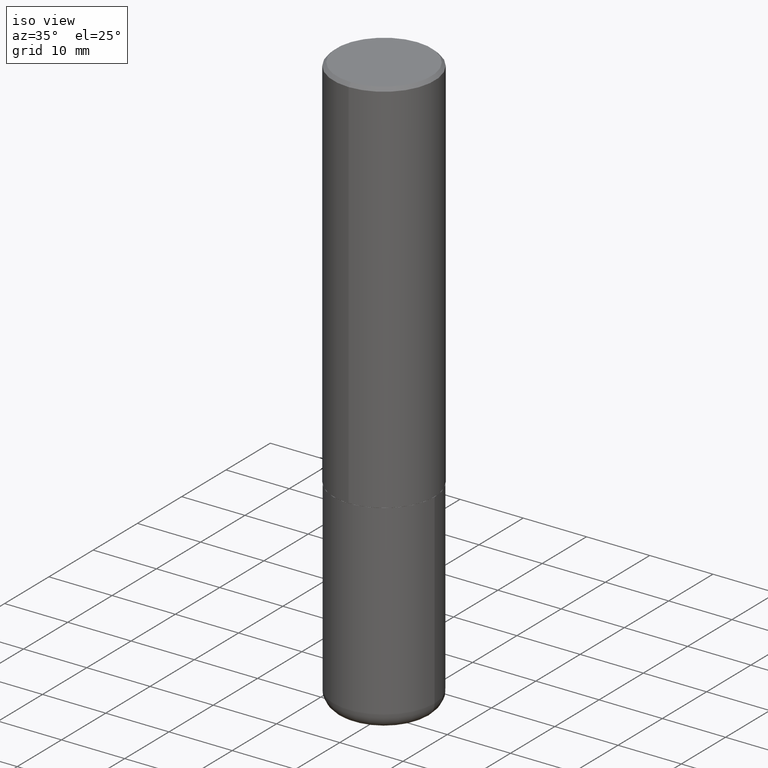
[diagram: clean part render]
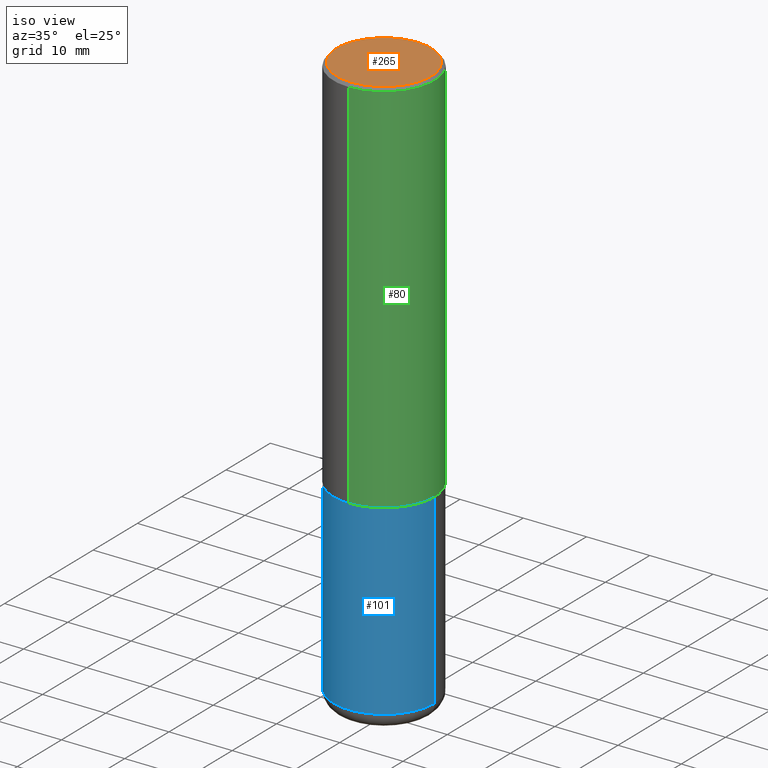
[diagram: same view with three faces highlighted in distinct colors, each labeled with its STEP entity id]
A machine part, iso view with three faces highlighted in distinct colors.
Their STEP definitions:

[orange] entity #265 — the highlighted planar face has unit normal (0, -0, -1).
#10 = DIRECTION ( 'NONE',  ( 2.445305379362280521E-29, -3.491715375355152192E-15, -1.000000000000000000 ) ) ;
#32 = CIRCLE ( 'NONE', #374, 0.2949499999999998234 ) ;
#73 = DIRECTION ( 'NONE',  ( -6.982962677686265922E-15, -1.000000000000000000, 3.491715375355151403E-15 ) ) ;
#103 = ORIENTED_EDGE ( 'NONE', *, *, #262, .T. ) ;
#105 = EDGE_LOOP ( 'NONE', ( #103, #149 ) ) ;
#108 = CARTESIAN_POINT ( 'NONE',  ( -2.092108864420427637E-15, -0.2949499999999998234, 1.196422466144134051E-15 ) ) ;
#110 = CARTESIAN_POINT ( 'NONE',  ( 2.059624841783562880E-15, 0.2949499999999998234, -9.466109418694351198E-16 ) ) ;
#111 = EDGE_CURVE ( 'NONE', #156, #344, #32, .T. ) ;
#144 = DIRECTION ( 'NONE',  ( 6.982962677686265922E-15, 1.000000000000000000, -3.491715375355152192E-15 ) ) ;
#147 = CARTESIAN_POINT ( 'NONE',  ( -4.072436427570742464E-45, 5.815138268339145389E-31, 1.665410161831323580E-16 ) ) ;
#149 = ORIENTED_EDGE ( 'NONE', *, *, #111, .T. ) ;
#156 = VERTEX_POINT ( 'NONE', #108 ) ;
#175 = CIRCLE ( 'NONE', #383, 0.2949499999999998234 ) ;
#178 = CARTESIAN_POINT ( 'NONE',  ( 2.129454468560426573E-15, 0.2949499999999998234, -8.633404337778690394E-16 ) ) ;
#230 = DIRECTION ( 'NONE',  ( -6.982962677686265922E-15, -1.000000000000000000, 3.491715375355151403E-15 ) ) ;
#234 = PLANE ( 'NONE',  #411 ) ;
#262 = EDGE_CURVE ( 'NONE', #344, #156, #175, .T. ) ;
#263 = DIRECTION ( 'NONE',  ( -2.445305379362280801E-29, 3.491715375355152192E-15, 1.000000000000000000 ) ) ;
#265 = ADVANCED_FACE ( 'NONE', ( #307 ), #234, .F. ) ;
#307 = FACE_OUTER_BOUND ( 'NONE', #105, .T. ) ;
#344 = VERTEX_POINT ( 'NONE', #178 ) ;
#362 = DIRECTION ( 'NONE',  ( -2.445305379362280801E-29, 3.491715375355152192E-15, 1.000000000000000000 ) ) ;
#374 = AXIS2_PLACEMENT_3D ( 'NONE', #389, #263, #230 ) ;
#383 = AXIS2_PLACEMENT_3D ( 'NONE', #147, #362, #73 ) ;
#389 = CARTESIAN_POINT ( 'NONE',  ( -4.072436427570742464E-45, 5.815138268339145389E-31, 1.665410161831323580E-16 ) ) ;
#411 = AXIS2_PLACEMENT_3D ( 'NONE', #110, #10, #144 ) ;

[blue] entity #101 — the highlighted cylindrical surface (partial cylindrical patch) has radius 7.9997 mm, axis along (-0, 0, 1).
#7 = EDGE_CURVE ( 'NONE', #243, #277, #342, .T. ) ;
#11 = DIRECTION ( 'NONE',  ( -2.445468806185136877E-29, 3.491481338843145188E-15, 1.000000000000000000 ) ) ;
#42 = DIRECTION ( 'NONE',  ( 1.000000000000000000, -6.982962677686266711E-15, 0.000000000000000000 ) ) ;
#58 = AXIS2_PLACEMENT_3D ( 'NONE', #138, #136, #391 ) ;
#62 = CARTESIAN_POINT ( 'NONE',  ( -0.3149500000000000077, 2.237854346276435590E-15, -1.549218606675782676E-29 ) ) ;
#71 = LINE ( 'NONE', #395, #200 ) ;
#79 = ORIENTED_EDGE ( 'NONE', *, *, #190, .F. ) ;
#100 = CARTESIAN_POINT ( 'NONE',  ( 8.616853885473946211E-29, -1.230258364554770589E-14, -3.523599999999999621 ) ) ;
#101 = ADVANCED_FACE ( 'NONE', ( #258 ), #353, .T. ) ;
#107 = CARTESIAN_POINT ( 'NONE',  ( 0.3149500000000000077, -1.044686131395256792E-14, -2.362199999999999633 ) ) ;
#125 = EDGE_LOOP ( 'NONE', ( #79, #287, #312, #142 ) ) ;
#136 = DIRECTION ( 'NONE',  ( -2.445468806185136597E-29, 3.491481338843145583E-15, 1.000000000000000000 ) ) ;
#138 = CARTESIAN_POINT ( 'NONE',  ( 0.000000000000000000, 0.000000000000000000, 0.000000000000000000 ) ) ;
#142 = ORIENTED_EDGE ( 'NONE', *, *, #250, .F. ) ;
#145 = LINE ( 'NONE', #62, #195 ) ;
#177 = CARTESIAN_POINT ( 'NONE',  ( 5.776686413970529753E-29, -8.247577218615278049E-15, -2.362199999999999633 ) ) ;
#190 = EDGE_CURVE ( 'NONE', #243, #371, #145, .T. ) ;
#194 = AXIS2_PLACEMENT_3D ( 'NONE', #100, #254, #225 ) ;
#195 = VECTOR ( 'NONE', #11, 39.37007874015748143 ) ;
#200 = VECTOR ( 'NONE', #367, 39.37007874015748143 ) ;
#216 = VERTEX_POINT ( 'NONE', #107 ) ;
#225 = DIRECTION ( 'NONE',  ( 1.000000000000000000, -6.982962677686269866E-15, 0.000000000000000000 ) ) ;
#239 = CARTESIAN_POINT ( 'NONE',  ( 0.3149499999999999522, -1.450186774088499734E-14, -3.523599999999999621 ) ) ;
#243 = VERTEX_POINT ( 'NONE', #365 ) ;
#250 = EDGE_CURVE ( 'NONE', #371, #216, #308, .T. ) ;
#254 = DIRECTION ( 'NONE',  ( -2.445468806185136597E-29, 3.491481338843145583E-15, 1.000000000000000000 ) ) ;
#258 = FACE_OUTER_BOUND ( 'NONE', #125, .T. ) ;
#277 = VERTEX_POINT ( 'NONE', #239 ) ;
#278 = EDGE_CURVE ( 'NONE', #277, #216, #71, .T. ) ;
#287 = ORIENTED_EDGE ( 'NONE', *, *, #7, .T. ) ;
#308 = CIRCLE ( 'NONE', #393, 0.3149500000000000077 ) ;
#312 = ORIENTED_EDGE ( 'NONE', *, *, #278, .T. ) ;
#342 = CIRCLE ( 'NONE', #194, 0.3149500000000000077 ) ;
#345 = CARTESIAN_POINT ( 'NONE',  ( -0.3149500000000000077, -8.037226085805055984E-15, -2.362199999999999633 ) ) ;
#353 = CYLINDRICAL_SURFACE ( 'NONE', #58, 0.3149500000000000077 ) ;
#365 = CARTESIAN_POINT ( 'NONE',  ( -0.3149499999999999522, -1.006472929927126990E-14, -3.523599999999999621 ) ) ;
#367 = DIRECTION ( 'NONE',  ( -2.445468806185136877E-29, 3.491481338843145188E-15, 1.000000000000000000 ) ) ;
#371 = VERTEX_POINT ( 'NONE', #345 ) ;
#391 = DIRECTION ( 'NONE',  ( 1.000000000000000000, -6.982962677686266711E-15, 4.876176775795936353E-29 ) ) ;
#393 = AXIS2_PLACEMENT_3D ( 'NONE', #177, #404, #42 ) ;
#395 = CARTESIAN_POINT ( 'NONE',  ( 0.3149500000000000077, -2.199284095337289871E-15, 1.535751875536930130E-29 ) ) ;
#404 = DIRECTION ( 'NONE',  ( -2.445468806185136597E-29, 3.491481338843145583E-15, 1.000000000000000000 ) ) ;

[green] entity #80 — the highlighted cylindrical surface (partial cylindrical patch) has radius 7.9997 mm, axis along (-0, 0, 1).
#5 = DIRECTION ( 'NONE',  ( -2.445305379362280801E-29, 3.491715375355152192E-15, 1.000000000000000000 ) ) ;
#23 = EDGE_CURVE ( 'NONE', #86, #116, #355, .T. ) ;
#36 = DIRECTION ( 'NONE',  ( -6.982962677686264344E-15, -1.000000000000000000, 3.491715375355152192E-15 ) ) ;
#50 = VECTOR ( 'NONE', #319, 39.37007874015748143 ) ;
#61 = CARTESIAN_POINT ( 'NONE',  ( 5.773855061750216491E-29, -8.244638344288584824E-15, -2.361199999999999743 ) ) ;
#69 = DIRECTION ( 'NONE',  ( -2.445305379362280801E-29, 3.491715375355152192E-15, 1.000000000000000000 ) ) ;
#76 = CIRCLE ( 'NONE', #321, 0.3149500000000000077 ) ;
#77 = LINE ( 'NONE', #186, #50 ) ;
#80 = ADVANCED_FACE ( 'NONE', ( #192 ), #229, .T. ) ;
#86 = VERTEX_POINT ( 'NONE', #170 ) ;
#89 = ORIENTED_EDGE ( 'NONE', *, *, #140, .T. ) ;
#112 = AXIS2_PLACEMENT_3D ( 'NONE', #298, #5, #36 ) ;
#116 = VERTEX_POINT ( 'NONE', #162 ) ;
#119 = ORIENTED_EDGE ( 'NONE', *, *, #23, .F. ) ;
#127 = DIRECTION ( 'NONE',  ( -2.445305379362280801E-29, 3.491715375355152192E-15, 1.000000000000000000 ) ) ;
#140 = EDGE_CURVE ( 'NONE', #86, #181, #326, .T. ) ;
#154 = EDGE_LOOP ( 'NONE', ( #89, #334, #167, #119 ) ) ;
#162 = CARTESIAN_POINT ( 'NONE',  ( -2.160713844398143363E-15, -0.3149500000000000632, -0.01999999999999896999 ) ) ;
#167 = ORIENTED_EDGE ( 'NONE', *, *, #352, .F. ) ;
#170 = CARTESIAN_POINT ( 'NONE',  ( -2.199284095337233467E-15, -0.3149500000000085564, -2.361199999999998411 ) ) ;
#176 = AXIS2_PLACEMENT_3D ( 'NONE', #61, #357, #191 ) ;
#181 = VERTEX_POINT ( 'NONE', #364 ) ;
#186 = CARTESIAN_POINT ( 'NONE',  ( 2.237854346276435985E-15, 0.3149500000000001743, -1.099715757468105786E-15 ) ) ;
#191 = DIRECTION ( 'NONE',  ( -6.982962677686265922E-15, -1.000000000000000000, 3.469564049740290009E-15 ) ) ;
#192 = FACE_OUTER_BOUND ( 'NONE', #154, .T. ) ;
#229 = CYLINDRICAL_SURFACE ( 'NONE', #112, 0.3149500000000001743 ) ;
#279 = CARTESIAN_POINT ( 'NONE',  ( 2.199284095337289871E-15, 0.3149499999999999522, -0.02000000000000117309 ) ) ;
#298 = CARTESIAN_POINT ( 'NONE',  ( 0.000000000000000000, 0.000000000000000000, 0.000000000000000000 ) ) ;
#299 = CARTESIAN_POINT ( 'NONE',  ( -2.199284095337290265E-15, -0.3149500000000001743, 1.099715757468105786E-15 ) ) ;
#318 = VERTEX_POINT ( 'NONE', #279 ) ;
#319 = DIRECTION ( 'NONE',  ( -2.445305379362280801E-29, 3.491715375355152192E-15, 1.000000000000000000 ) ) ;
#321 = AXIS2_PLACEMENT_3D ( 'NONE', #406, #127, #415 ) ;
#326 = CIRCLE ( 'NONE', #176, 0.3149500000000002853 ) ;
#334 = ORIENTED_EDGE ( 'NONE', *, *, #414, .T. ) ;
#352 = EDGE_CURVE ( 'NONE', #116, #318, #76, .T. ) ;
#355 = LINE ( 'NONE', #299, #398 ) ;
#357 = DIRECTION ( 'NONE',  ( -2.445305379362280801E-29, 3.491715375355152192E-15, 1.000000000000000000 ) ) ;
#364 = CARTESIAN_POINT ( 'NONE',  ( 2.237854346276465567E-15, 0.3149499999999920141, -2.361200000000000632 ) ) ;
#398 = VECTOR ( 'NONE', #69, 39.37007874015748143 ) ;
#406 = CARTESIAN_POINT ( 'NONE',  ( 4.890610758724579539E-31, -6.983430750710329184E-17, -0.02000000000000007327 ) ) ;
#414 = EDGE_CURVE ( 'NONE', #181, #318, #77, .T. ) ;
#415 = DIRECTION ( 'NONE',  ( -6.982962677686265922E-15, -1.000000000000000000, 3.496670018878889100E-15 ) ) ;